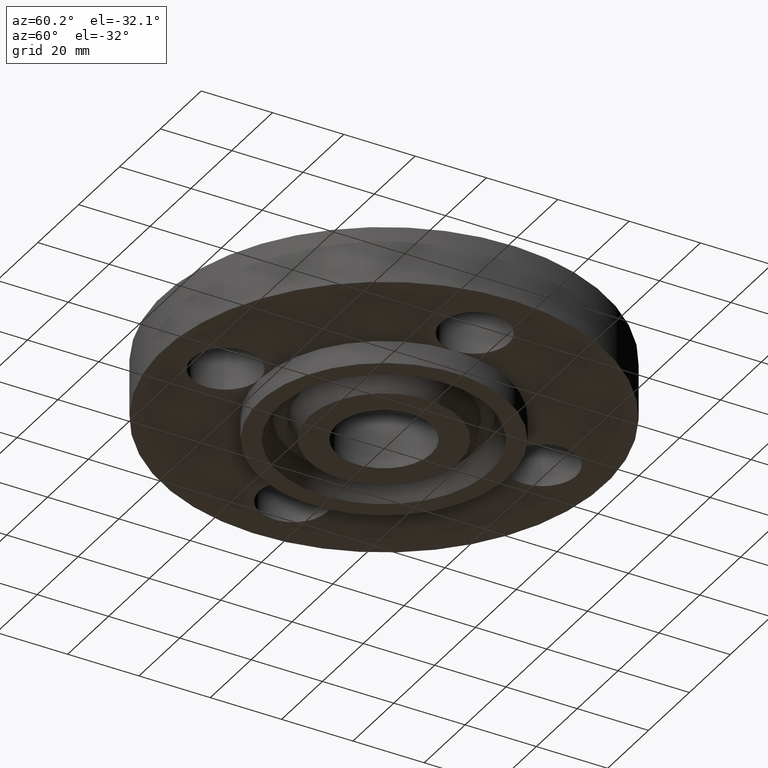
[diagram: clean part render]
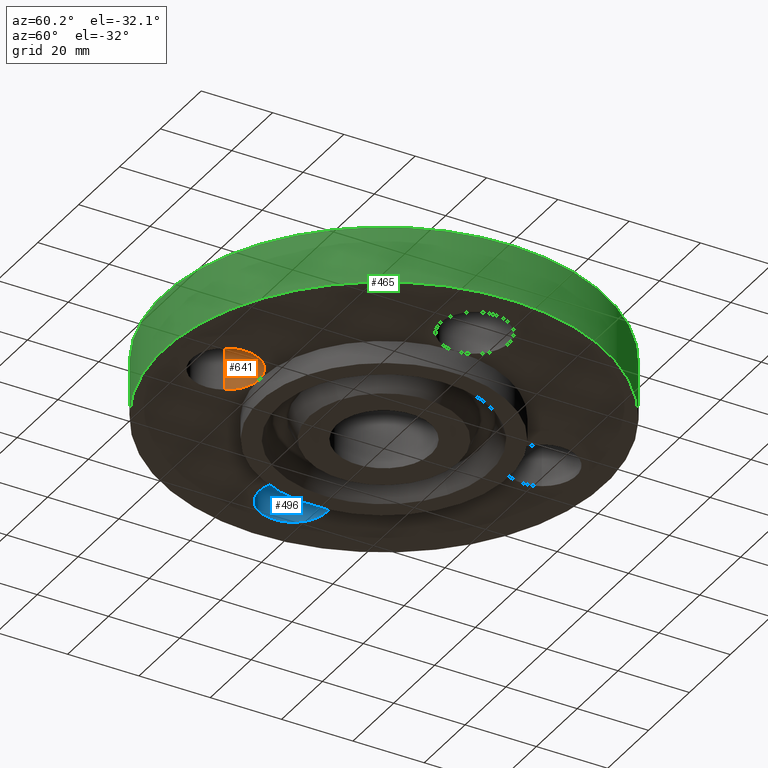
[diagram: same view with three faces highlighted in distinct colors, each labeled with its STEP entity id]
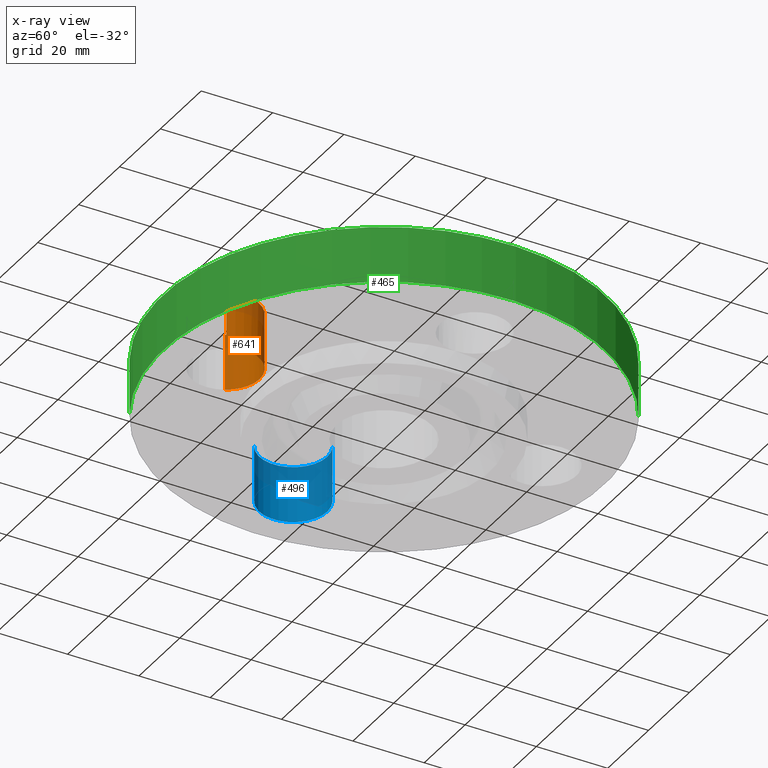
[diagram: x-ray of the same camera — body ghosted, the three highlighted faces saturated]
A machine part, auxiliary view with three faces highlighted in distinct colors.
The next image is the same camera in x-ray (body ghosted, the three faces saturated) — at least one of them is partly hidden behind the body in this view.
Their STEP definitions:

[orange] entity #641 — the highlighted cylindrical surface (partial cylindrical patch) has radius 9.525 mm, axis along (-0, 0, -1).
#328=AXIS2_PLACEMENT_3D('Circle Axis2P3D',#326,#327,$) ;
#342=AXIS2_PLACEMENT_3D('Circle Axis2P3D',#340,#341,$) ;
#601=AXIS2_PLACEMENT_3D('Cylinder Axis2P3D',#598,#599,#600) ;
#631=AXIS2_PLACEMENT_3D('Circle Axis2P3D',#629,#630,$) ;
#286=CARTESIAN_POINT('Vertex',(2.02112938519E-016,-1.37500000001,0.)) ;
#326=CARTESIAN_POINT('Axis2P3D Location',(2.70999320971E-016,-1.75000000001,0.)) ;
#330=CARTESIAN_POINT('Vertex',(-0.32909346071,-1.57021542303,0.)) ;
#337=CARTESIAN_POINT('Vertex',(0.32909346071,-1.92978457698,0.)) ;
#340=CARTESIAN_POINT('Axis2P3D Location',(2.70999320971E-016,-1.75000000001,0.)) ;
#598=CARTESIAN_POINT('Axis2P3D Location',(2.14313189852E-016,-1.75000000001,0.616062992128)) ;
#603=CARTESIAN_POINT('Line Origine',(0.32909346071,-1.92978457698,0.310000000001)) ;
#607=CARTESIAN_POINT('Vertex',(0.32909346071,-1.92978457698,0.620000000002)) ;
#610=CARTESIAN_POINT('Line Origine',(-0.32909346071,-1.57021542303,0.310000000001)) ;
#614=CARTESIAN_POINT('Vertex',(-0.32909346071,-1.57021542303,0.620000000002)) ;
#629=CARTESIAN_POINT('Axis2P3D Location',(2.14313189852E-016,-1.75000000001,0.620000000002)) ;
#327=DIRECTION('Axis2P3D Direction',(0.,0.,-0.0393700787402)) ;
#341=DIRECTION('Axis2P3D Direction',(0.,0.,-0.0393700787402)) ;
#599=DIRECTION('Axis2P3D Direction',(-0.,0.,-0.0393700787402)) ;
#600=DIRECTION('Axis2P3D XDirection',(-0.0345504945626,0.0188750212049,0.)) ;
#604=DIRECTION('Vector Direction',(0.,0.,-0.0393700787402)) ;
#611=DIRECTION('Vector Direction',(0.,0.,-0.0393700787402)) ;
#630=DIRECTION('Axis2P3D Direction',(-0.,0.,-0.0393700787402)) ;
#605=VECTOR('Line Direction',#604,0.0393700787402) ;
#612=VECTOR('Line Direction',#611,0.0393700787402) ;
#635=ORIENTED_EDGE('',*,*,#616,.F.) ;
#636=ORIENTED_EDGE('',*,*,#332,.T.) ;
#637=ORIENTED_EDGE('',*,*,#344,.T.) ;
#638=ORIENTED_EDGE('',*,*,#609,.T.) ;
#639=ORIENTED_EDGE('',*,*,#633,.F.) ;
#641=ADVANCED_FACE('PartBody',(#640),#602,.F.) ;
#329=CIRCLE('generated circle',#328,0.375000000001) ;
#343=CIRCLE('generated circle',#342,0.375000000001) ;
#632=CIRCLE('generated circle',#631,0.375000000001) ;
#602=CYLINDRICAL_SURFACE('generated cylinder',#601,0.375000000001) ;
#332=EDGE_CURVE('',#331,#287,#329,.T.) ;
#344=EDGE_CURVE('',#287,#338,#343,.T.) ;
#609=EDGE_CURVE('',#338,#608,#606,.F.) ;
#616=EDGE_CURVE('',#331,#615,#613,.F.) ;
#633=EDGE_CURVE('',#615,#608,#632,.T.) ;
#634=EDGE_LOOP('',(#635,#636,#637,#638,#639)) ;
#640=FACE_OUTER_BOUND('',#634,.T.) ;
#606=LINE('Line',#603,#605) ;
#613=LINE('Line',#610,#612) ;
#287=VERTEX_POINT('',#286) ;
#331=VERTEX_POINT('',#330) ;
#338=VERTEX_POINT('',#337) ;
#608=VERTEX_POINT('',#607) ;
#615=VERTEX_POINT('',#614) ;

[blue] entity #496 — the highlighted cylindrical surface (partial cylindrical patch) has radius 9.525 mm, axis along (0, 0, -1).
#392=AXIS2_PLACEMENT_3D('Circle Axis2P3D',#390,#391,$) ;
#469=AXIS2_PLACEMENT_3D('Cylinder Axis2P3D',#466,#467,#468) ;
#487=AXIS2_PLACEMENT_3D('Circle Axis2P3D',#485,#486,$) ;
#387=CARTESIAN_POINT('Vertex',(-1.57021542303,0.32909346071,0.)) ;
#390=CARTESIAN_POINT('Axis2P3D Location',(-1.75000000001,-2.79741234551E-016,0.)) ;
#394=CARTESIAN_POINT('Vertex',(-1.92978457698,-0.32909346071,0.)) ;
#466=CARTESIAN_POINT('Axis2P3D Location',(-1.75000000001,-3.21469784777E-016,0.616062992128)) ;
#471=CARTESIAN_POINT('Line Origine',(-1.92978457698,-0.32909346071,0.310000000001)) ;
#475=CARTESIAN_POINT('Vertex',(-1.92978457698,-0.32909346071,0.620000000002)) ;
#478=CARTESIAN_POINT('Line Origine',(-1.57021542303,0.32909346071,0.310000000001)) ;
#482=CARTESIAN_POINT('Vertex',(-1.57021542303,0.32909346071,0.620000000002)) ;
#485=CARTESIAN_POINT('Axis2P3D Location',(-1.75000000001,-3.21469784777E-016,0.620000000002)) ;
#391=DIRECTION('Axis2P3D Direction',(0.,0.,-0.0393700787402)) ;
#467=DIRECTION('Axis2P3D Direction',(0.,0.,-0.0393700787402)) ;
#468=DIRECTION('Axis2P3D XDirection',(0.0188750212049,0.0345504945626,0.)) ;
#472=DIRECTION('Vector Direction',(0.,0.,-0.0393700787402)) ;
#479=DIRECTION('Vector Direction',(0.,0.,-0.0393700787402)) ;
#486=DIRECTION('Axis2P3D Direction',(0.,0.,-0.0393700787402)) ;
#473=VECTOR('Line Direction',#472,0.0393700787402) ;
#480=VECTOR('Line Direction',#479,0.0393700787402) ;
#491=ORIENTED_EDGE('',*,*,#477,.F.) ;
#492=ORIENTED_EDGE('',*,*,#396,.T.) ;
#493=ORIENTED_EDGE('',*,*,#484,.T.) ;
#494=ORIENTED_EDGE('',*,*,#489,.F.) ;
#496=ADVANCED_FACE('PartBody',(#495),#470,.F.) ;
#393=CIRCLE('generated circle',#392,0.375000000001) ;
#488=CIRCLE('generated circle',#487,0.375000000001) ;
#470=CYLINDRICAL_SURFACE('generated cylinder',#469,0.375000000001) ;
#396=EDGE_CURVE('',#395,#388,#393,.T.) ;
#477=EDGE_CURVE('',#395,#476,#474,.F.) ;
#484=EDGE_CURVE('',#388,#483,#481,.F.) ;
#489=EDGE_CURVE('',#476,#483,#488,.T.) ;
#490=EDGE_LOOP('',(#491,#492,#493,#494)) ;
#495=FACE_OUTER_BOUND('',#490,.T.) ;
#474=LINE('Line',#471,#473) ;
#481=LINE('Line',#478,#480) ;
#388=VERTEX_POINT('',#387) ;
#395=VERTEX_POINT('',#394) ;
#476=VERTEX_POINT('',#475) ;
#483=VERTEX_POINT('',#482) ;

[green] entity #465 — the highlighted cylindrical surface (partial cylindrical patch) has radius 61.976 mm, axis along (0, 0, -1).
#319=AXIS2_PLACEMENT_3D('Circle Axis2P3D',#317,#318,$) ;
#426=AXIS2_PLACEMENT_3D('Cylinder Axis2P3D',#423,#424,#425) ;
#456=AXIS2_PLACEMENT_3D('Circle Axis2P3D',#454,#455,$) ;
#312=CARTESIAN_POINT('Vertex',(-1.1697983142,-2.14130145102,1.39870617276E-016)) ;
#314=CARTESIAN_POINT('Vertex',(1.1697983142,2.14130145102,1.39870617276E-016)) ;
#317=CARTESIAN_POINT('Axis2P3D Location',(0.,0.,0.)) ;
#423=CARTESIAN_POINT('Axis2P3D Location',(0.,0.,0.375000000001)) ;
#428=CARTESIAN_POINT('Line Origine',(-1.1697983142,-2.14130145102,0.310000000001)) ;
#432=CARTESIAN_POINT('Vertex',(-1.1697983142,-2.14130145102,0.620000000002)) ;
#439=CARTESIAN_POINT('Vertex',(1.1697983142,2.14130145102,0.620000000002)) ;
#442=CARTESIAN_POINT('Line Origine',(1.1697983142,2.14130145102,0.310000000001)) ;
#454=CARTESIAN_POINT('Axis2P3D Location',(0.,0.,0.620000000002)) ;
#318=DIRECTION('Axis2P3D Direction',(0.,0.,-0.0393700787402)) ;
#424=DIRECTION('Axis2P3D Direction',(0.,0.,-0.0393700787402)) ;
#425=DIRECTION('Axis2P3D XDirection',(0.0188750212049,0.0345504945626,0.)) ;
#429=DIRECTION('Vector Direction',(0.,0.,-0.0393700787402)) ;
#443=DIRECTION('Vector Direction',(0.,0.,-0.0393700787402)) ;
#455=DIRECTION('Axis2P3D Direction',(0.,0.,-0.0393700787402)) ;
#430=VECTOR('Line Direction',#429,0.0393700787402) ;
#444=VECTOR('Line Direction',#443,0.0393700787402) ;
#460=ORIENTED_EDGE('',*,*,#321,.F.) ;
#461=ORIENTED_EDGE('',*,*,#446,.T.) ;
#462=ORIENTED_EDGE('',*,*,#458,.T.) ;
#463=ORIENTED_EDGE('',*,*,#434,.F.) ;
#465=ADVANCED_FACE('PartBody',(#464),#427,.T.) ;
#320=CIRCLE('generated circle',#319,2.44000000001) ;
#457=CIRCLE('generated circle',#456,2.44000000001) ;
#427=CYLINDRICAL_SURFACE('generated cylinder',#426,2.44000000001) ;
#321=EDGE_CURVE('',#315,#313,#320,.T.) ;
#434=EDGE_CURVE('',#313,#433,#431,.F.) ;
#446=EDGE_CURVE('',#315,#440,#445,.F.) ;
#458=EDGE_CURVE('',#440,#433,#457,.T.) ;
#459=EDGE_LOOP('',(#460,#461,#462,#463)) ;
#464=FACE_OUTER_BOUND('',#459,.T.) ;
#431=LINE('Line',#428,#430) ;
#445=LINE('Line',#442,#444) ;
#313=VERTEX_POINT('',#312) ;
#315=VERTEX_POINT('',#314) ;
#433=VERTEX_POINT('',#432) ;
#440=VERTEX_POINT('',#439) ;